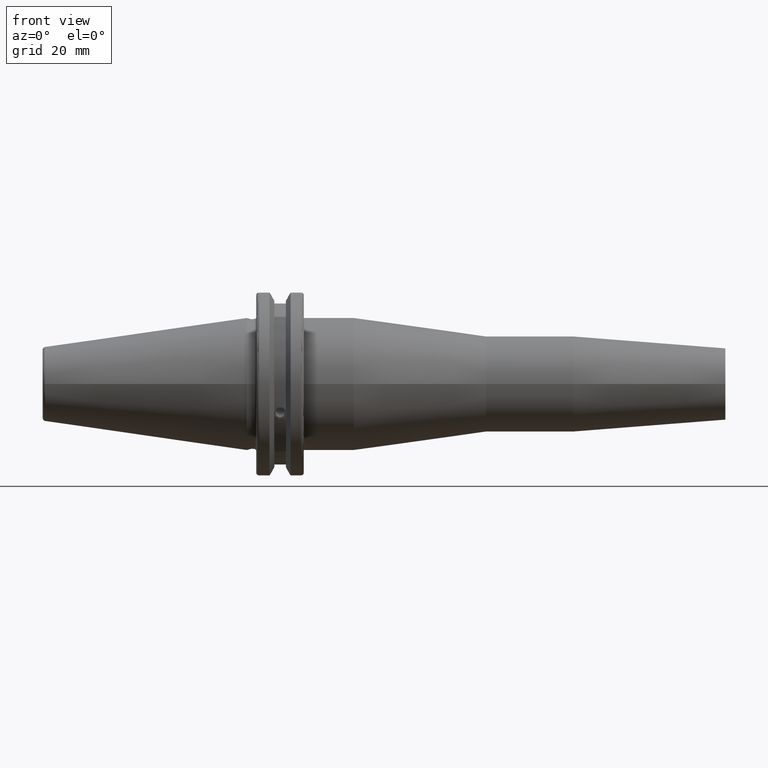
[diagram: clean part render]
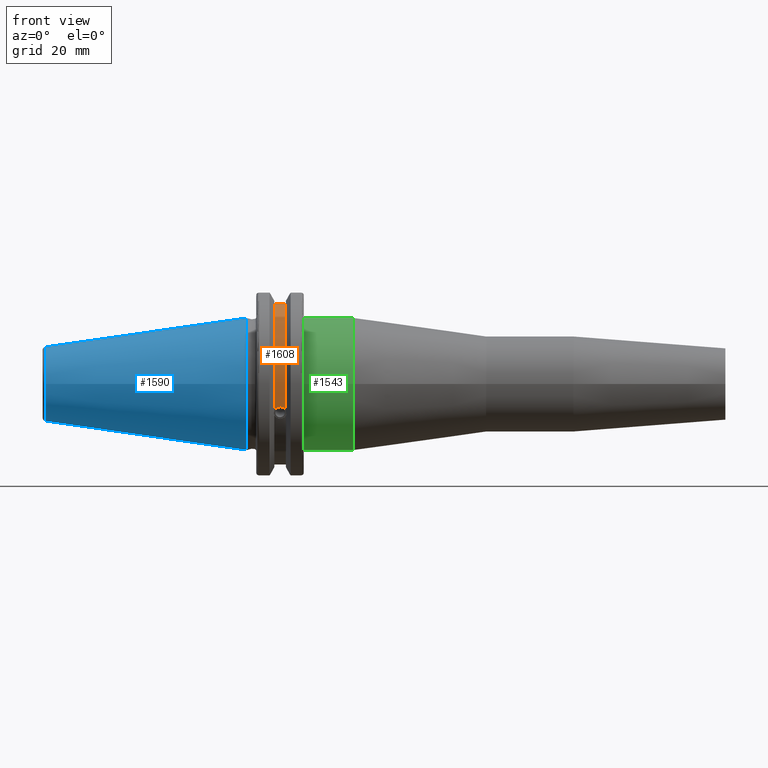
[diagram: same view with three faces highlighted in distinct colors, each labeled with its STEP entity id]
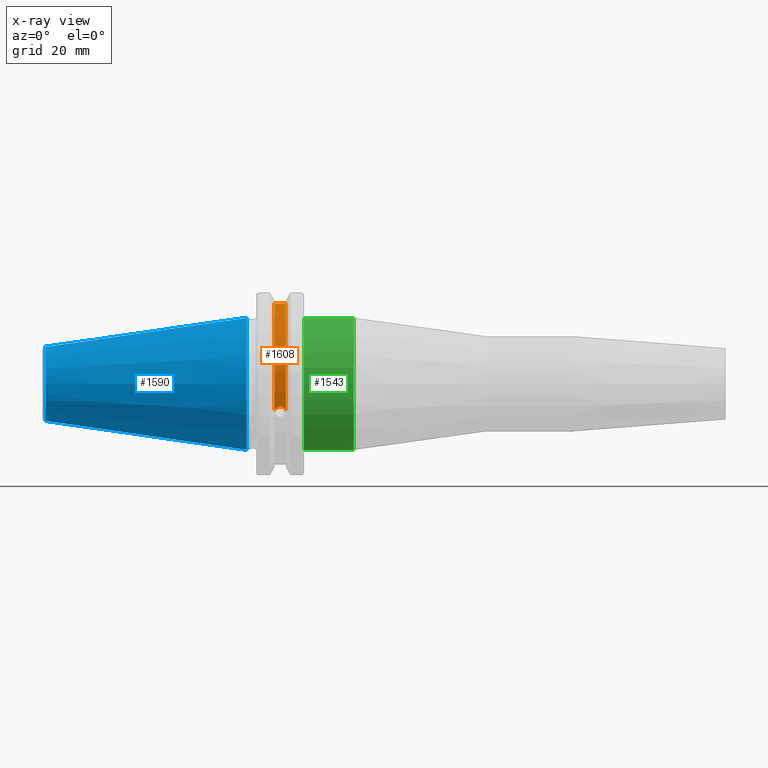
[diagram: x-ray of the same camera — body ghosted, the three highlighted faces saturated]
A machine part, front view with three faces highlighted in distinct colors.
The next image is the same camera in x-ray (body ghosted, the three faces saturated) — at least one of them is partly hidden behind the body in this view.
Their STEP definitions:

[orange] entity #1608 — the highlighted cylindrical surface (partial cylindrical patch) has radius 28.15 mm, axis along (1, 0, 0).
#42=B_SPLINE_CURVE_WITH_KNOTS('',3,(#2479,#2480,#2481,#2482,#2483,#2484,
#2485,#2486,#2487,#2488,#2489,#2490,#2491,#2492),.UNSPECIFIED.,.F.,.F.,
(4,2,2,2,2,2,4),(0.401639126382403,0.474814416953736,0.553950208498303,
0.63308600004287,0.712221791587437,0.791357583132004,0.864532873703336),
 .UNSPECIFIED.);
#172=CYLINDRICAL_SURFACE('',#1807,28.15);
#254=FACE_OUTER_BOUND('',#361,.T.);
#361=EDGE_LOOP('',(#1460,#1461,#1462,#1463));
#445=LINE('',#2909,#545);
#545=VECTOR('',#2145,10.);
#639=CIRCLE('',#1808,28.15);
#640=CIRCLE('',#1809,28.15);
#681=VERTEX_POINT('',#2476);
#682=VERTEX_POINT('',#2478);
#775=VERTEX_POINT('',#2906);
#776=VERTEX_POINT('',#2908);
#855=EDGE_CURVE('',#682,#681,#42,.T.);
#978=EDGE_CURVE('',#776,#775,#445,.T.);
#1029=EDGE_CURVE('',#776,#681,#639,.T.);
#1030=EDGE_CURVE('',#775,#682,#640,.T.);
#1460=ORIENTED_EDGE('',*,*,#855,.T.);
#1461=ORIENTED_EDGE('',*,*,#1029,.F.);
#1462=ORIENTED_EDGE('',*,*,#978,.T.);
#1463=ORIENTED_EDGE('',*,*,#1030,.T.);
#1608=ADVANCED_FACE('',(#254),#172,.T.);
#1807=AXIS2_PLACEMENT_3D('',#3057,#2253,#2254);
#1808=AXIS2_PLACEMENT_3D('',#3058,#2255,#2256);
#1809=AXIS2_PLACEMENT_3D('',#3059,#2257,#2258);
#2145=DIRECTION('',(-1.,0.,0.));
#2253=DIRECTION('center_axis',(1.,0.,0.));
#2254=DIRECTION('ref_axis',(0.,-0.887654187951484,0.46051063246378));
#2255=DIRECTION('center_axis',(1.,0.,0.));
#2256=DIRECTION('ref_axis',(0.,0.,-1.));
#2257=DIRECTION('center_axis',(1.,0.,0.));
#2258=DIRECTION('ref_axis',(0.,0.,-1.));
#2476=CARTESIAN_POINT('',(13.0491,-26.734714844398,-8.81348524641211));
#2478=CARTESIAN_POINT('',(9.2191,-26.734714844398,-8.81348524641212));
#2479=CARTESIAN_POINT('Ctrl Pts',(9.2191,-26.734714844398,-8.81348524641212));
#2480=CARTESIAN_POINT('Ctrl Pts',(9.32533057097183,-26.8086519721597,-8.58920529678291));
#2481=CARTESIAN_POINT('Ctrl Pts',(9.47682013770509,-26.8729987454904,-8.38416529997369));
#2482=CARTESIAN_POINT('Ctrl Pts',(9.83557062657411,-26.9778908791383,-8.04056861831091));
#2483=CARTESIAN_POINT('Ctrl Pts',(10.0716450112988,-27.0233016799732,-7.88512567185902));
#2484=CARTESIAN_POINT('Ctrl Pts',(10.5890125426388,-27.0826966800569,-7.6786444840004));
#2485=CARTESIAN_POINT('Ctrl Pts',(10.8703140281848,-27.0968804077294,-7.62768458768512));
#2486=CARTESIAN_POINT('Ctrl Pts',(11.3978859718152,-27.0968804077294,-7.62768458768512));
#2487=CARTESIAN_POINT('Ctrl Pts',(11.6791874573612,-27.0826966800569,-7.6786444840004));
#2488=CARTESIAN_POINT('Ctrl Pts',(12.1965549887012,-27.0233016799732,-7.88512567185902));
#2489=CARTESIAN_POINT('Ctrl Pts',(12.4326293734259,-26.9778908791383,-8.04056861831091));
#2490=CARTESIAN_POINT('Ctrl Pts',(12.7913798622949,-26.8729987454904,-8.38416529997369));
#2491=CARTESIAN_POINT('Ctrl Pts',(12.9428694290282,-26.8086519721597,-8.5892052967829));
#2492=CARTESIAN_POINT('Ctrl Pts',(13.0491,-26.734714844398,-8.81348524641211));
#2906=CARTESIAN_POINT('',(9.2191,-8.19,26.932255754021));
#2908=CARTESIAN_POINT('',(13.0491,-8.19,26.932255754021));
#2909=CARTESIAN_POINT('',(11.1341,-8.19,26.932255754021));
#3057=CARTESIAN_POINT('Origin',(11.1341,0.,0.));
#3058=CARTESIAN_POINT('Origin',(13.0491,0.,0.));
#3059=CARTESIAN_POINT('Origin',(9.2191,0.,0.));

[blue] entity #1590 — the highlighted conical surface has half-angle 8.297 deg.
#236=FACE_OUTER_BOUND('',#343,.T.);
#343=EDGE_LOOP('',(#1380,#1381,#1382,#1383,#1384));
#454=LINE('',#3004,#554);
#554=VECTOR('',#2192,17.2484375);
#628=CIRCLE('',#1777,12.3966635780937);
#629=CIRCLE('',#1778,12.3966635780937);
#633=CIRCLE('',#1784,22.225);
#786=VERTEX_POINT('',#2991);
#787=VERTEX_POINT('',#2992);
#790=VERTEX_POINT('',#3002);
#999=EDGE_CURVE('',#786,#787,#628,.T.);
#1000=EDGE_CURVE('',#787,#786,#629,.T.);
#1004=EDGE_CURVE('',#790,#790,#633,.T.);
#1005=EDGE_CURVE('',#790,#787,#454,.T.);
#1380=ORIENTED_EDGE('',*,*,#1004,.F.);
#1381=ORIENTED_EDGE('',*,*,#1005,.T.);
#1382=ORIENTED_EDGE('',*,*,#999,.F.);
#1383=ORIENTED_EDGE('',*,*,#1000,.F.);
#1384=ORIENTED_EDGE('',*,*,#1005,.F.);
#1522=CONICAL_SURFACE('',#1783,17.2484375,0.144812498238939);
#1590=ADVANCED_FACE('',(#236),#1522,.T.);
#1777=AXIS2_PLACEMENT_3D('',#2993,#2176,#2177);
#1778=AXIS2_PLACEMENT_3D('',#2994,#2178,#2179);
#1783=AXIS2_PLACEMENT_3D('',#3001,#2188,#2189);
#1784=AXIS2_PLACEMENT_3D('',#3003,#2190,#2191);
#2176=DIRECTION('center_axis',(-1.,0.,0.));
#2177=DIRECTION('ref_axis',(0.,-1.,3.06161699786838E-17));
#2178=DIRECTION('center_axis',(-1.,0.,0.));
#2179=DIRECTION('ref_axis',(0.,-1.,3.06161699786838E-17));
#2188=DIRECTION('center_axis',(1.,0.,0.));
#2189=DIRECTION('ref_axis',(0.,1.,0.));
#2190=DIRECTION('center_axis',(1.,0.,0.));
#2191=DIRECTION('ref_axis',(0.,0.,-1.));
#2192=DIRECTION('',(-0.989532981063282,0.144306893071729,1.76724974695192E-17));
#2991=CARTESIAN_POINT('',(-67.3943068930717,-1.5181534371019E-15,12.3966635780937));
#2992=CARTESIAN_POINT('',(-67.3943068930718,-12.3966635780937,-1.5181534371019E-15));
#2993=CARTESIAN_POINT('Origin',(-67.3943068930717,0.,-1.89769179637738E-15));
#2994=CARTESIAN_POINT('Origin',(-67.3943068930717,0.,-1.89769179637738E-15));
#3001=CARTESIAN_POINT('Origin',(-34.125,0.,0.));
#3002=CARTESIAN_POINT('',(0.,-22.225,-2.72177751110499E-15));
#3003=CARTESIAN_POINT('Origin',(0.,0.,0.));
#3004=CARTESIAN_POINT('',(-34.125,-17.2484375,-2.11232437746682E-15));

[green] entity #1543 — the highlighted cylindrical surface (bore or boss wall) has radius 22.225 mm, axis along (1, 0, 0).
#149=CYLINDRICAL_SURFACE('',#1674,22.225);
#189=FACE_OUTER_BOUND('',#287,.T.);
#287=EDGE_LOOP('',(#1098,#1099,#1100,#1101));
#386=LINE('',#2434,#486);
#486=VECTOR('',#1906,22.225);
#589=CIRCLE('',#1675,22.225);
#590=CIRCLE('',#1676,22.225);
#668=VERTEX_POINT('',#2431);
#669=VERTEX_POINT('',#2433);
#834=EDGE_CURVE('',#668,#668,#589,.T.);
#835=EDGE_CURVE('',#668,#669,#386,.T.);
#836=EDGE_CURVE('',#669,#669,#590,.T.);
#1098=ORIENTED_EDGE('',*,*,#834,.F.);
#1099=ORIENTED_EDGE('',*,*,#835,.T.);
#1100=ORIENTED_EDGE('',*,*,#836,.F.);
#1101=ORIENTED_EDGE('',*,*,#835,.F.);
#1543=ADVANCED_FACE('',(#189),#149,.T.);
#1674=AXIS2_PLACEMENT_3D('',#2430,#1902,#1903);
#1675=AXIS2_PLACEMENT_3D('',#2432,#1904,#1905);
#1676=AXIS2_PLACEMENT_3D('',#2435,#1907,#1908);
#1902=DIRECTION('center_axis',(1.,0.,0.));
#1903=DIRECTION('ref_axis',(0.,1.,0.));
#1904=DIRECTION('center_axis',(1.,0.,0.));
#1905=DIRECTION('ref_axis',(0.,0.,-1.));
#1906=DIRECTION('',(-1.,0.,0.));
#1907=DIRECTION('center_axis',(-1.,0.,0.));
#1908=DIRECTION('ref_axis',(0.,1.,0.));
#2430=CARTESIAN_POINT('Origin',(27.3784117390792,0.,0.));
#2431=CARTESIAN_POINT('',(35.7068234781583,-22.225,-2.72177751110499E-15));
#2432=CARTESIAN_POINT('Origin',(35.7068234781583,0.,0.));
#2433=CARTESIAN_POINT('',(19.05,-22.225,-2.72177751110499E-15));
#2434=CARTESIAN_POINT('',(27.3784117390792,-22.225,-2.72177751110499E-15));
#2435=CARTESIAN_POINT('Origin',(19.05,0.,0.));